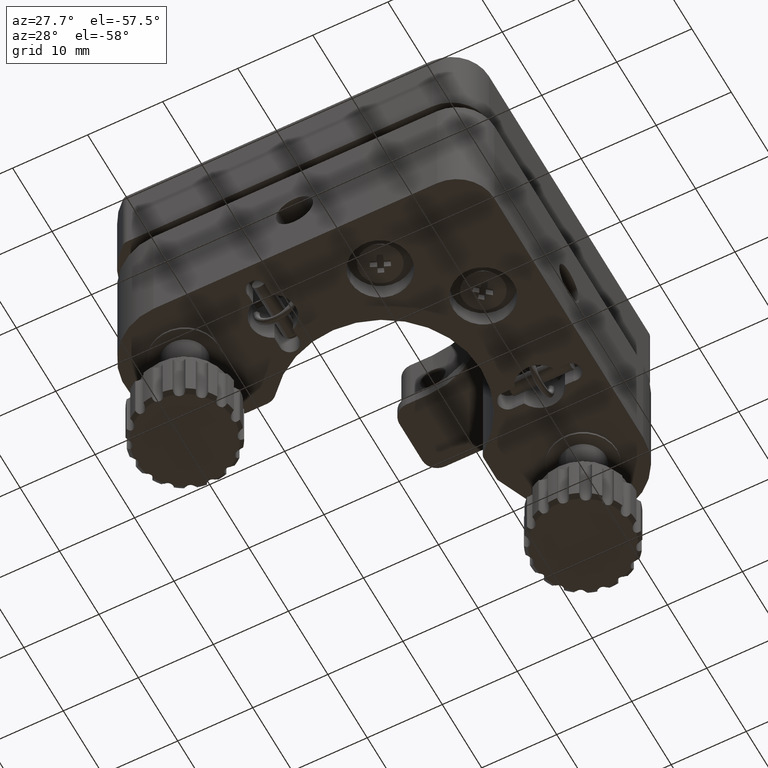
[diagram: clean part render]
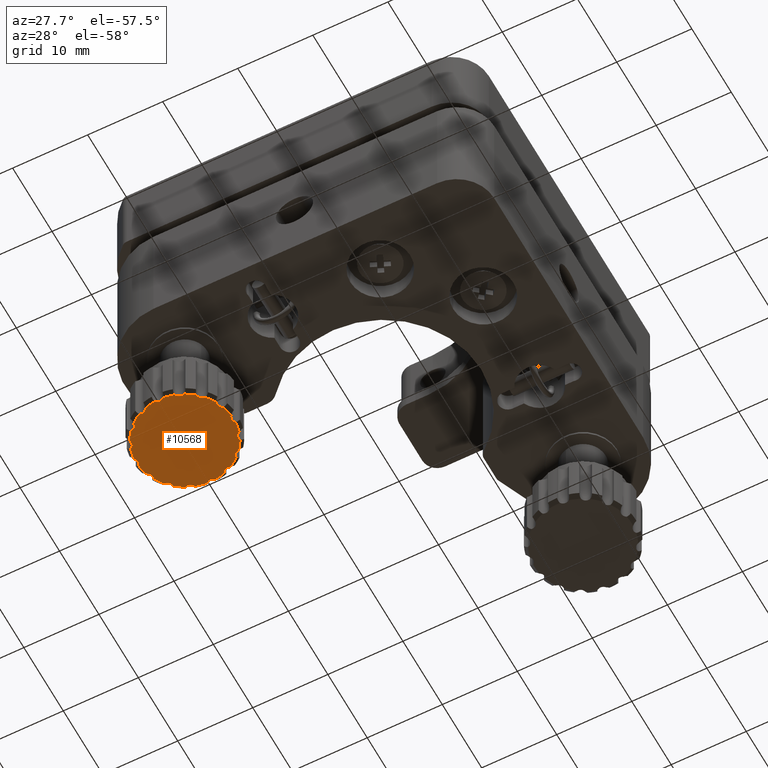
[diagram: same view with one face highlighted and labeled with its STEP entity id]
A machine part, auxiliary view. The second image highlights one B-rep face of the part: STEP entity #10568.
In plain terms, the highlighted planar face has unit normal (-0, -0, -1).
Its self-contained STEP definition (entity closure, byte-faithful):
#31 = CARTESIAN_POINT ( 'NONE',  ( 4.117871494726125000, 19.22522462687263100, 4.263664572557994200 ) ) ;
#115 = CARTESIAN_POINT ( 'NONE',  ( 0.4777067381000861800, 30.39151919001960800, 4.263664572557995100 ) ) ;
#176 = EDGE_CURVE ( 'NONE', #6132, #14667, #16192, .T. ) ;
#181 = ORIENTED_EDGE ( 'NONE', *, *, #30600, .F. ) ;
#513 = CIRCLE ( 'NONE', #6665, 6.499999999999984900 ) ;
#589 = CARTESIAN_POINT ( 'NONE',  ( 6.379775842777196000, 26.55101458151771300, 4.263664572557995100 ) ) ;
#922 = ORIENTED_EDGE ( 'NONE', *, *, #28363, .F. ) ;
#1317 = CARTESIAN_POINT ( 'NONE',  ( 6.375240732264517300, 24.41042908773523800, 4.263664572557994200 ) ) ;
#1814 = DIRECTION ( 'NONE',  ( -6.938893903907226800E-018, -5.551115123125781500E-017, -1.000000000000000000 ) ) ;
#1820 = CARTESIAN_POINT ( 'NONE',  ( 4.808745160786552100, 18.93334523817750500, 4.263664572557994200 ) ) ;
#1852 = DIRECTION ( 'NONE',  ( -6.938893903907226800E-018, -5.551115123125781500E-017, -1.000000000000000000 ) ) ;
#1974 = VERTEX_POINT ( 'NONE', #9824 ) ;
#1986 = CIRCLE ( 'NONE', #27595, 0.7500000000005435700 ) ;
#2233 = AXIS2_PLACEMENT_3D ( 'NONE', #27359, #10380, #30160 ) ;
#2266 = ORIENTED_EDGE ( 'NONE', *, *, #5474, .F. ) ;
#2286 = CIRCLE ( 'NONE', #7449, 0.7500000000002278200 ) ;
#2424 = EDGE_CURVE ( 'NONE', #31898, #10596, #27741, .T. ) ;
#2677 = DIRECTION ( 'NONE',  ( -0.9211648880799018200, 0.3891725182598866400, 0.0000000000000000000 ) ) ;
#2689 = DIRECTION ( 'NONE',  ( -0.9211648880799018200, 0.3891725182598868600, 0.0000000000000000000 ) ) ;
#2791 = DIRECTION ( 'NONE',  ( -0.9211648880799012700, 0.3891725182598881900, 0.0000000000000000000 ) ) ;
#2872 = ORIENTED_EDGE ( 'NONE', *, *, #33656, .T. ) ;
#2893 = AXIS2_PLACEMENT_3D ( 'NONE', #1820, #21694, #4681 ) ;
#2911 = AXIS2_PLACEMENT_3D ( 'NONE', #10360, #10314, #11168 ) ;
#2948 = ORIENTED_EDGE ( 'NONE', *, *, #28742, .T. ) ;
#2975 = DIRECTION ( 'NONE',  ( -6.938893903907226800E-018, -5.551115123125781500E-017, -1.000000000000000000 ) ) ;
#2979 = EDGE_CURVE ( 'NONE', #16485, #11019, #10829, .T. ) ;
#3061 = VERTEX_POINT ( 'NONE', #7166 ) ;
#3067 = CIRCLE ( 'NONE', #8366, 0.7499999999999998900 ) ;
#3070 = ORIENTED_EDGE ( 'NONE', *, *, #5582, .F. ) ;
#3081 = DIRECTION ( 'NONE',  ( -6.938893903907226800E-018, -5.551115123125781500E-017, -1.000000000000000000 ) ) ;
#3087 = EDGE_CURVE ( 'NONE', #15777, #21430, #4605, .T. ) ;
#3145 = AXIS2_PLACEMENT_3D ( 'NONE', #18574, #15708, #32590 ) ;
#3203 = EDGE_CURVE ( 'NONE', #11272, #20170, #26769, .T. ) ;
#3314 = DIRECTION ( 'NONE',  ( -0.9211648880799018200, 0.3891725182598866400, 0.0000000000000000000 ) ) ;
#3318 = CARTESIAN_POINT ( 'NONE',  ( 6.379775842777196000, 26.55101458151771300, 4.263664572557995100 ) ) ;
#3325 = DIRECTION ( 'NONE',  ( -6.938893903907226800E-018, -5.551115123125781500E-017, -1.000000000000000000 ) ) ;
#3456 = DIRECTION ( 'NONE',  ( -0.9211648880799010500, 0.3891725182598885200, 0.0000000000000000000 ) ) ;
#3552 = DIRECTION ( 'NONE',  ( -6.938893903907226800E-018, -5.551115123125781500E-017, -1.000000000000000000 ) ) ;
#3714 = ORIENTED_EDGE ( 'NONE', *, *, #19834, .F. ) ;
#3978 = CARTESIAN_POINT ( 'NONE',  ( -0.05682553523850179100, 30.91761352448775200, 4.263664572557995100 ) ) ;
#4233 = DIRECTION ( 'NONE',  ( -6.938893903907226800E-018, -5.551115123125781500E-017, -1.000000000000000000 ) ) ;
#4593 = CIRCLE ( 'NONE', #18930, 0.7500000000006045200 ) ;
#4605 = CIRCLE ( 'NONE', #27827, 0.7499999999999994400 ) ;
#4681 = DIRECTION ( 'NONE',  ( -0.9211648880799018200, 0.3891725182598866400, 0.0000000000000000000 ) ) ;
#5423 = VERTEX_POINT ( 'NONE', #20114 ) ;
#5474 = EDGE_CURVE ( 'NONE', #10596, #10159, #20568, .T. ) ;
#5578 = CARTESIAN_POINT ( 'NONE',  ( 4.884344564580663600, 28.08261900682276700, 4.263664572557995100 ) ) ;
#5582 = EDGE_CURVE ( 'NONE', #20901, #34518, #1986, .T. ) ;
#5639 = CARTESIAN_POINT ( 'NONE',  ( 6.893763411764794600, 23.86854881420210700, 4.263664572557994200 ) ) ;
#5858 = EDGE_CURVE ( 'NONE', #27918, #34073, #10382, .T. ) ;
#6023 = EDGE_CURVE ( 'NONE', #31898, #12503, #22361, .T. ) ;
#6132 = VERTEX_POINT ( 'NONE', #14474 ) ;
#6181 = DIRECTION ( 'NONE',  ( -0.9211648880799010500, 0.3891725182598885200, 0.0000000000000000000 ) ) ;
#6292 = CARTESIAN_POINT ( 'NONE',  ( -0.1060634168794444800, 23.91778669584323700, 4.263664572557994200 ) ) ;
#6466 = CARTESIAN_POINT ( 'NONE',  ( 4.825261473919597100, 19.68316335705787900, 4.263664572557994200 ) ) ;
#6665 = AXIS2_PLACEMENT_3D ( 'NONE', #15893, #35607, #18764 ) ;
#6667 = EDGE_CURVE ( 'NONE', #21439, #34518, #33884, .T. ) ;
#6833 = DIRECTION ( 'NONE',  ( -0.9211648880799020400, 0.3891725182598866400, 0.0000000000000000000 ) ) ;
#7081 = DIRECTION ( 'NONE',  ( -6.938893903907226800E-018, -5.551115123125781500E-017, -1.000000000000000000 ) ) ;
#7084 = EDGE_LOOP ( 'NONE', ( #8369, #25821, #26486, #17670, #28522, #22612, #16850, #15462, #34353, #2266, #35411, #12346, #181, #34195, #21394, #3070, #24567, #35987, #12826, #14639, #33892, #22499, #20519, #21352, #16336, #3714, #27213, #922, #2872, #27734, #16149, #23830, #21122, #30916, #2948, #32842, #11106 ) ) ;
#7166 = CARTESIAN_POINT ( 'NONE',  ( 6.098284700063382900, 25.85584356905098600, 4.263664572557995100 ) ) ;
#7212 = AXIS2_PLACEMENT_3D ( 'NONE', #29490, #29452, #23554 ) ;
#7428 = EDGE_CURVE ( 'NONE', #16738, #32298, #12756, .T. ) ;
#7449 = AXIS2_PLACEMENT_3D ( 'NONE', #589, #20481, #3456 ) ;
#7534 = EDGE_CURVE ( 'NONE', #7772, #21430, #16742, .T. ) ;
#7644 = DIRECTION ( 'NONE',  ( -6.938893903907226800E-018, -5.551115123125781500E-017, -1.000000000000000000 ) ) ;
#7772 = VERTEX_POINT ( 'NONE', #35537 ) ;
#7957 = CARTESIAN_POINT ( 'NONE',  ( -0.1060634168794444800, 23.91778669584323700, 4.263664572557994200 ) ) ;
#8034 = DIRECTION ( 'NONE',  ( -6.938893903907226800E-018, -5.551115123125781500E-017, -1.000000000000000000 ) ) ;
#8242 = AXIS2_PLACEMENT_3D ( 'NONE', #11152, #30928, #14004 ) ;
#8347 = CARTESIAN_POINT ( 'NONE',  ( -6.591902676536630400, 21.28455881016898800, 4.263664572557993400 ) ) ;
#8366 = AXIS2_PLACEMENT_3D ( 'NONE', #36534, #19679, #2677 ) ;
#8369 = ORIENTED_EDGE ( 'NONE', *, *, #31589, .F. ) ;
#8372 = DIRECTION ( 'NONE',  ( -6.938893903907226800E-018, -5.551115123125781500E-017, -1.000000000000000000 ) ) ;
#8385 = AXIS2_PLACEMENT_3D ( 'NONE', #32906, #32881, #32838 ) ;
#8435 = AXIS2_PLACEMENT_3D ( 'NONE', #24076, #7081, #26892 ) ;
#8821 = EDGE_CURVE ( 'NONE', #34009, #13774, #4593, .T. ) ;
#8856 = DIRECTION ( 'NONE',  ( -6.938893903907226800E-018, -5.551115123125781500E-017, -1.000000000000000000 ) ) ;
#9100 = CARTESIAN_POINT ( 'NONE',  ( 2.829366523833490200, 18.11836852992643200, 4.263664572557993400 ) ) ;
#9112 = EDGE_CURVE ( 'NONE', #26275, #24168, #36218, .T. ) ;
#9126 = VERTEX_POINT ( 'NONE', #20053 ) ;
#9131 = DIRECTION ( 'NONE',  ( -0.9211648880799018200, 0.3891725182598868600, 0.0000000000000000000 ) ) ;
#9423 = CIRCLE ( 'NONE', #11166, 0.7499999999999998900 ) ;
#9700 = AXIS2_PLACEMENT_3D ( 'NONE', #24683, #7644, #27477 ) ;
#9810 = EDGE_CURVE ( 'NONE', #9126, #1974, #28718, .T. ) ;
#9824 = CARTESIAN_POINT ( 'NONE',  ( 5.693354749037407500, 26.85321663655608400, 4.263664572557995100 ) ) ;
#9940 = CARTESIAN_POINT ( 'NONE',  ( 4.878378040786126100, 28.83259527350978900, 4.263664572557995100 ) ) ;
#10015 = AXIS2_PLACEMENT_3D ( 'NONE', #20082, #3081, #22932 ) ;
#10159 = VERTEX_POINT ( 'NONE', #1317 ) ;
#10293 = CIRCLE ( 'NONE', #36446, 0.7500000000001135800 ) ;
#10314 = DIRECTION ( 'NONE',  ( -6.938893903907226800E-018, -5.551115123125781500E-017, -1.000000000000000000 ) ) ;
#10360 = CARTESIAN_POINT ( 'NONE',  ( 6.893763411764794600, 23.86854881420210700, 4.263664572557994200 ) ) ;
#10380 = DIRECTION ( 'NONE',  ( -6.938893903907226800E-018, -5.551115123125781500E-017, -1.000000000000000000 ) ) ;
#10382 = CIRCLE ( 'NONE', #7212, 0.7500000000003436100 ) ;
#10568 = ADVANCED_FACE ( 'NONE', ( #26902 ), #16958, .T. ) ;
#10596 = VERTEX_POINT ( 'NONE', #22763 ) ;
#10782 = CARTESIAN_POINT ( 'NONE',  ( 2.527164468794643100, 17.43194743618644100, 4.263664572557993400 ) ) ;
#10818 = DIRECTION ( 'NONE',  ( -0.9211648880799018200, 0.3891725182598868600, 0.0000000000000000000 ) ) ;
#10829 = CIRCLE ( 'NONE', #3145, 6.499999999999984900 ) ;
#11019 = VERTEX_POINT ( 'NONE', #24742 ) ;
#11106 = ORIENTED_EDGE ( 'NONE', *, *, #29156, .T. ) ;
#11148 = CARTESIAN_POINT ( 'NONE',  ( 6.367669077296849200, 23.33401654086286900, 4.263664572557994200 ) ) ;
#11152 = CARTESIAN_POINT ( 'NONE',  ( -5.090504874545563200, 19.00297811817707900, 4.263664572557993400 ) ) ;
#11166 = AXIS2_PLACEMENT_3D ( 'NONE', #3978, #23853, #6833 ) ;
#11168 = DIRECTION ( 'NONE',  ( -0.9211648880799012700, 0.3891725182598881900, 0.0000000000000000000 ) ) ;
#11201 = DIRECTION ( 'NONE',  ( -0.9211648880799010500, 0.3891725182598886900, 0.0000000000000000000 ) ) ;
#11209 = CIRCLE ( 'NONE', #8242, 0.7500000000005545600 ) ;
#11272 = VERTEX_POINT ( 'NONE', #27077 ) ;
#11381 = CARTESIAN_POINT ( 'NONE',  ( 6.342090799679478000, 21.19357906802386900, 4.263664572557994200 ) ) ;
#11446 = CIRCLE ( 'NONE', #21330, 6.499999999999984900 ) ;
#11525 = AXIS2_PLACEMENT_3D ( 'NONE', #29880, #12968, #32691 ) ;
#12077 = DIRECTION ( 'NONE',  ( -6.938893903907226800E-018, -5.551115123125781500E-017, -1.000000000000000000 ) ) ;
#12335 = CIRCLE ( 'NONE', #12927, 6.499999999999984900 ) ;
#12346 = ORIENTED_EDGE ( 'NONE', *, *, #6023, .T. ) ;
#12503 = VERTEX_POINT ( 'NONE', #29827 ) ;
#12726 = EDGE_CURVE ( 'NONE', #33350, #13774, #25490, .T. ) ;
#12756 = CIRCLE ( 'NONE', #36551, 0.7500000000006155100 ) ;
#12826 = ORIENTED_EDGE ( 'NONE', *, *, #8821, .F. ) ;
#12860 = VERTEX_POINT ( 'NONE', #13989 ) ;
#12927 = AXIS2_PLACEMENT_3D ( 'NONE', #36547, #19694, #2689 ) ;
#12936 = EDGE_CURVE ( 'NONE', #15777, #1974, #18377, .T. ) ;
#12968 = DIRECTION ( 'NONE',  ( -6.938893903907226800E-018, -5.551115123125781500E-017, -1.000000000000000000 ) ) ;
#13162 = AXIS2_PLACEMENT_3D ( 'NONE', #6292, #26127, #9131 ) ;
#13512 = CARTESIAN_POINT ( 'NONE',  ( -3.041493357591731800, 29.71720486176037200, 4.263664572557995100 ) ) ;
#13774 = VERTEX_POINT ( 'NONE', #9100 ) ;
#13989 = CARTESIAN_POINT ( 'NONE',  ( 1.831993456327468200, 17.71343857890014900, 4.263664572557993400 ) ) ;
#14004 = DIRECTION ( 'NONE',  ( -0.9211648880799022700, 0.3891725182598855200, 0.0000000000000000000 ) ) ;
#14139 = DIRECTION ( 'NONE',  ( -0.9211648880799016000, 0.3891725182598874700, 0.0000000000000000000 ) ) ;
#14199 = CARTESIAN_POINT ( 'NONE',  ( 2.618144210939765200, 30.36594091240255000, 4.263664572557995100 ) ) ;
#14237 = DIRECTION ( 'NONE',  ( -0.9211648880799013800, 0.3891725182598878000, 0.0000000000000000000 ) ) ;
#14466 = DIRECTION ( 'NONE',  ( -6.938893903907226800E-018, -5.551115123125781500E-017, -1.000000000000000000 ) ) ;
#14474 = CARTESIAN_POINT ( 'NONE',  ( -5.863613200582228100, 26.93451016480485900, 4.263664572557994200 ) ) ;
#14639 = ORIENTED_EDGE ( 'NONE', *, *, #22388, .F. ) ;
#14667 = VERTEX_POINT ( 'NONE', #36081 ) ;
#14713 = DIRECTION ( 'NONE',  ( -6.938893903907226800E-018, -5.551115123125781500E-017, -1.000000000000000000 ) ) ;
#14812 = AXIS2_PLACEMENT_3D ( 'NONE', #25391, #8372, #28198 ) ;
#14815 = EDGE_CURVE ( 'NONE', #21439, #18162, #19498, .T. ) ;
#14955 = CARTESIAN_POINT ( 'NONE',  ( -0.1060634168794444800, 23.91778669584323700, 4.263664572557994200 ) ) ;
#15138 = VERTEX_POINT ( 'NONE', #20273 ) ;
#15202 = CIRCLE ( 'NONE', #25390, 6.499999999999984900 ) ;
#15226 = CARTESIAN_POINT ( 'NONE',  ( 1.919082078401113100, 30.09425702467545000, 4.263664572557995100 ) ) ;
#15462 = ORIENTED_EDGE ( 'NONE', *, *, #17395, .F. ) ;
#15467 = CARTESIAN_POINT ( 'NONE',  ( -0.5987058087709543600, 30.39909084498723500, 4.263664572557995100 ) ) ;
#15708 = DIRECTION ( 'NONE',  ( -6.938893903907226800E-018, -5.551115123125781500E-017, -1.000000000000000000 ) ) ;
#15750 = AXIS2_PLACEMENT_3D ( 'NONE', #21803, #12077, #18828 ) ;
#15777 = VERTEX_POINT ( 'NONE', #5578 ) ;
#15893 = CARTESIAN_POINT ( 'NONE',  ( -0.1060634168794444800, 23.91778669584323700, 4.263664572557994200 ) ) ;
#15971 = EDGE_CURVE ( 'NONE', #34655, #15138, #18465, .T. ) ;
#16149 = ORIENTED_EDGE ( 'NONE', *, *, #17652, .T. ) ;
#16192 = CIRCLE ( 'NONE', #33330, 6.499999999999984900 ) ;
#16309 = EDGE_CURVE ( 'NONE', #33350, #20901, #29875, .T. ) ;
#16336 = ORIENTED_EDGE ( 'NONE', *, *, #31694, .T. ) ;
#16485 = VERTEX_POINT ( 'NONE', #30887 ) ;
#16738 = VERTEX_POINT ( 'NONE', #33811 ) ;
#16742 = CIRCLE ( 'NONE', #13162, 6.499999999999984900 ) ;
#16850 = ORIENTED_EDGE ( 'NONE', *, *, #9810, .F. ) ;
#16958 = PLANE ( 'NONE',  #34995 ) ;
#17081 = DIRECTION ( 'NONE',  ( -0.9211648880799017100, 0.3891725182598869700, 0.0000000000000000000 ) ) ;
#17395 = EDGE_CURVE ( 'NONE', #3061, #9126, #2286, .T. ) ;
#17632 = AXIS2_PLACEMENT_3D ( 'NONE', #20356, #3325, #23193 ) ;
#17652 = EDGE_CURVE ( 'NONE', #27918, #34133, #34523, .T. ) ;
#17670 = ORIENTED_EDGE ( 'NONE', *, *, #7534, .T. ) ;
#18162 = VERTEX_POINT ( 'NONE', #23775 ) ;
#18257 = EDGE_CURVE ( 'NONE', #6132, #34133, #33998, .T. ) ;
#18377 = CIRCLE ( 'NONE', #10015, 6.499999999999984900 ) ;
#18465 = CIRCLE ( 'NONE', #17632, 0.7500000000006337200 ) ;
#18473 = AXIS2_PLACEMENT_3D ( 'NONE', #25858, #8856, #28662 ) ;
#18574 = CARTESIAN_POINT ( 'NONE',  ( -0.1060634168794444800, 23.91778669584323700, 4.263664572557994200 ) ) ;
#18592 = CARTESIAN_POINT ( 'NONE',  ( -2.131208912159770400, 17.74131636701094900, 4.263664572557993400 ) ) ;
#18764 = DIRECTION ( 'NONE',  ( -0.9211648880799018200, 0.3891725182598868600, 0.0000000000000000000 ) ) ;
#18779 = DIRECTION ( 'NONE',  ( -6.938893903907226800E-018, -5.551115123125781500E-017, -1.000000000000000000 ) ) ;
#18828 = DIRECTION ( 'NONE',  ( -0.9211648880799016000, 0.3891725182598874100, 0.0000000000000000000 ) ) ;
#18846 = CARTESIAN_POINT ( 'NONE',  ( 2.527164468794643100, 17.43194743618644100, 4.263664572557993400 ) ) ;
#18889 = CARTESIAN_POINT ( 'NONE',  ( -0.1060634168794444800, 23.91778669584323700, 4.263664572557994200 ) ) ;
#18930 = AXIS2_PLACEMENT_3D ( 'NONE', #18846, #1814, #21690 ) ;
#19021 = CARTESIAN_POINT ( 'NONE',  ( 4.128559921906275000, 28.84911158664196800, 4.263664572557995100 ) ) ;
#19106 = EDGE_CURVE ( 'NONE', #12860, #15138, #11446, .T. ) ;
#19498 = CIRCLE ( 'NONE', #34537, 0.7500000000004432000 ) ;
#19679 = DIRECTION ( 'NONE',  ( -6.938893903907226800E-018, -5.551115123125781500E-017, -1.000000000000000000 ) ) ;
#19694 = DIRECTION ( 'NONE',  ( -6.938893903907226800E-018, -5.551115123125781500E-017, -1.000000000000000000 ) ) ;
#19834 = EDGE_CURVE ( 'NONE', #16485, #33569, #11209, .T. ) ;
#19886 = CIRCLE ( 'NONE', #14812, 6.499999999999984900 ) ;
#19892 = EDGE_CURVE ( 'NONE', #3061, #10159, #15202, .T. ) ;
#19978 = CARTESIAN_POINT ( 'NONE',  ( -0.1060634168794444800, 23.91778669584323700, 4.263664572557994200 ) ) ;
#20053 = CARTESIAN_POINT ( 'NONE',  ( 5.688902176717059300, 26.84289397021271400, 4.263664572557995100 ) ) ;
#20082 = CARTESIAN_POINT ( 'NONE',  ( -0.1060634168794444800, 23.91778669584323700, 4.263664572557994200 ) ) ;
#20114 = CARTESIAN_POINT ( 'NONE',  ( -4.270895727858849100, 28.90819467730344900, 4.263664572557994200 ) ) ;
#20170 = VERTEX_POINT ( 'NONE', #13512 ) ;
#20273 = CARTESIAN_POINT ( 'NONE',  ( 0.3865789750124496400, 17.43648254669926700, 4.263664572557993400 ) ) ;
#20356 = CARTESIAN_POINT ( 'NONE',  ( -0.1553012985209652800, 16.91795986719884200, 4.263664572557993400 ) ) ;
#20379 = VERTEX_POINT ( 'NONE', #23040 ) ;
#20390 = EDGE_CURVE ( 'NONE', #5423, #14667, #10293, .T. ) ;
#20481 = DIRECTION ( 'NONE',  ( -6.938893903907226800E-018, -5.551115123125781500E-017, -1.000000000000000000 ) ) ;
#20519 = ORIENTED_EDGE ( 'NONE', *, *, #33657, .T. ) ;
#20568 = CIRCLE ( 'NONE', #2911, 0.7500000000003266300 ) ;
#20901 = VERTEX_POINT ( 'NONE', #31 ) ;
#21122 = ORIENTED_EDGE ( 'NONE', *, *, #176, .T. ) ;
#21330 = AXIS2_PLACEMENT_3D ( 'NONE', #18889, #1852, #21733 ) ;
#21352 = ORIENTED_EDGE ( 'NONE', *, *, #7428, .F. ) ;
#21394 = ORIENTED_EDGE ( 'NONE', *, *, #6667, .T. ) ;
#21430 = VERTEX_POINT ( 'NONE', #19021 ) ;
#21439 = VERTEX_POINT ( 'NONE', #27638 ) ;
#21602 = CARTESIAN_POINT ( 'NONE',  ( -0.6898335718604292600, 17.44405420166700400, 4.263664572557993400 ) ) ;
#21690 = DIRECTION ( 'NONE',  ( -0.9211648880799016000, 0.3891725182598874700, 0.0000000000000000000 ) ) ;
#21694 = DIRECTION ( 'NONE',  ( -6.938893903907226800E-018, -5.551115123125781500E-017, -1.000000000000000000 ) ) ;
#21733 = DIRECTION ( 'NONE',  ( -0.9211648880799018200, 0.3891725182598868600, 0.0000000000000000000 ) ) ;
#21803 = CARTESIAN_POINT ( 'NONE',  ( -2.739291302554079700, 30.40362595550026700, 4.263664572557995100 ) ) ;
#22051 = CARTESIAN_POINT ( 'NONE',  ( -4.340686755665165800, 18.98646180504451000, 4.263664572557993400 ) ) ;
#22361 = CIRCLE ( 'NONE', #8385, 6.499999999999984900 ) ;
#22388 = EDGE_CURVE ( 'NONE', #12860, #34009, #30820, .T. ) ;
#22440 = CIRCLE ( 'NONE', #23904, 6.499999999999984900 ) ;
#22499 = ORIENTED_EDGE ( 'NONE', *, *, #15971, .F. ) ;
#22511 = CIRCLE ( 'NONE', #29737, 0.7500000000004595200 ) ;
#22612 = ORIENTED_EDGE ( 'NONE', *, *, #12936, .T. ) ;
#22642 = DIRECTION ( 'NONE',  ( -6.938893903907226800E-018, -5.551115123125781500E-017, -1.000000000000000000 ) ) ;
#22740 = CARTESIAN_POINT ( 'NONE',  ( 4.058768894098988300, 18.92737871438221800, 4.263664572557994200 ) ) ;
#22763 = CARTESIAN_POINT ( 'NONE',  ( 6.202889745704569100, 24.16042820289715100, 4.263664572557994200 ) ) ;
#22792 = DIRECTION ( 'NONE',  ( -0.9211648880799018200, 0.3891725182598868600, 0.0000000000000000000 ) ) ;
#22823 = DIRECTION ( 'NONE',  ( -0.9211648880799018200, 0.3891725182598868600, 0.0000000000000000000 ) ) ;
#22932 = DIRECTION ( 'NONE',  ( -0.9211648880799018200, 0.3891725182598868600, 0.0000000000000000000 ) ) ;
#23040 = CARTESIAN_POINT ( 'NONE',  ( -6.310411533822365200, 21.97972982263578200, 4.263664572557993400 ) ) ;
#23185 = DIRECTION ( 'NONE',  ( -6.938893903907226800E-018, -5.551115123125781500E-017, -1.000000000000000000 ) ) ;
#23193 = DIRECTION ( 'NONE',  ( -0.9211648880799021600, 0.3891725182598861400, 0.0000000000000000000 ) ) ;
#23554 = DIRECTION ( 'NONE',  ( -0.9211648880799011600, 0.3891725182598886300, 0.0000000000000000000 ) ) ;
#23775 = CARTESIAN_POINT ( 'NONE',  ( 5.651217133619144100, 21.48545845671895500, 4.263664572557994200 ) ) ;
#23830 = ORIENTED_EDGE ( 'NONE', *, *, #18257, .F. ) ;
#23853 = DIRECTION ( 'NONE',  ( -6.938893903907226800E-018, -5.551115123125781500E-017, -1.000000000000000000 ) ) ;
#23904 = AXIS2_PLACEMENT_3D ( 'NONE', #7957, #27780, #10818 ) ;
#24076 = CARTESIAN_POINT ( 'NONE',  ( -0.1060634168794444800, 23.91778669584323700, 4.263664572557994200 ) ) ;
#24168 = VERTEX_POINT ( 'NONE', #15226 ) ;
#24393 = CARTESIAN_POINT ( 'NONE',  ( -6.282533745711575100, 25.94293219112404000, 4.263664572557994200 ) ) ;
#24567 = ORIENTED_EDGE ( 'NONE', *, *, #16309, .F. ) ;
#24683 = CARTESIAN_POINT ( 'NONE',  ( 6.342090799679478000, 21.19357906802386900, 4.263664572557994200 ) ) ;
#24742 = CARTESIAN_POINT ( 'NONE',  ( -5.905481582796507000, 20.98235675513080500, 4.263664572557993400 ) ) ;
#25060 = CARTESIAN_POINT ( 'NONE',  ( -0.1060634168794444800, 23.91778669584323700, 4.263664572557994200 ) ) ;
#25390 = AXIS2_PLACEMENT_3D ( 'NONE', #19978, #2975, #22823 ) ;
#25391 = CARTESIAN_POINT ( 'NONE',  ( -0.1060634168794444800, 23.91778669584323700, 4.263664572557994200 ) ) ;
#25489 = AXIS2_PLACEMENT_3D ( 'NONE', #35429, #35332, #35297 ) ;
#25490 = CIRCLE ( 'NONE', #25938, 6.499999999999984900 ) ;
#25638 = EDGE_CURVE ( 'NONE', #7772, #24168, #3067, .T. ) ;
#25821 = ORIENTED_EDGE ( 'NONE', *, *, #9112, .T. ) ;
#25858 = CARTESIAN_POINT ( 'NONE',  ( -0.1060634168794444800, 23.91778669584323700, 4.263664572557994200 ) ) ;
#25938 = AXIS2_PLACEMENT_3D ( 'NONE', #25060, #8034, #27864 ) ;
#26127 = DIRECTION ( 'NONE',  ( -6.938893903907226800E-018, -5.551115123125781500E-017, -1.000000000000000000 ) ) ;
#26275 = VERTEX_POINT ( 'NONE', #115 ) ;
#26486 = ORIENTED_EDGE ( 'NONE', *, *, #25638, .F. ) ;
#26769 = CIRCLE ( 'NONE', #15750, 0.7500000000000339700 ) ;
#26876 = AXIS2_PLACEMENT_3D ( 'NONE', #10782, #30550, #14139 ) ;
#26892 = DIRECTION ( 'NONE',  ( -0.9211648880799018200, 0.3891725182598868600, 0.0000000000000000000 ) ) ;
#26902 = FACE_OUTER_BOUND ( 'NONE', #7084, .T. ) ;
#26928 = DIRECTION ( 'NONE',  ( -0.9211648880799018200, 0.3891725182598868600, 0.0000000000000000000 ) ) ;
#27077 = CARTESIAN_POINT ( 'NONE',  ( -2.044120290087795100, 30.12213481278587700, 4.263664572557995100 ) ) ;
#27213 = ORIENTED_EDGE ( 'NONE', *, *, #2979, .T. ) ;
#27359 = CARTESIAN_POINT ( 'NONE',  ( -0.1060634168794444800, 23.91778669584323700, 4.263664572557994200 ) ) ;
#27477 = DIRECTION ( 'NONE',  ( -0.9211648880799013800, 0.3891725182598878000, 0.0000000000000000000 ) ) ;
#27595 = AXIS2_PLACEMENT_3D ( 'NONE', #35133, #3552, #3314 ) ;
#27638 = CARTESIAN_POINT ( 'NONE',  ( 5.651486366822957100, 20.90106322688088600, 4.263664572557994200 ) ) ;
#27734 = ORIENTED_EDGE ( 'NONE', *, *, #5858, .F. ) ;
#27741 = CIRCLE ( 'NONE', #32482, 0.7500000000003266300 ) ;
#27780 = DIRECTION ( 'NONE',  ( -6.938893903907226800E-018, -5.551115123125781500E-017, -1.000000000000000000 ) ) ;
#27827 = AXIS2_PLACEMENT_3D ( 'NONE', #9940, #4233, #26928 ) ;
#27864 = DIRECTION ( 'NONE',  ( -0.9211648880799018200, 0.3891725182598868600, 0.0000000000000000000 ) ) ;
#27918 = VERTEX_POINT ( 'NONE', #31630 ) ;
#28173 = DIRECTION ( 'NONE',  ( -6.938893903907226800E-018, -5.551115123125781500E-017, -1.000000000000000000 ) ) ;
#28198 = DIRECTION ( 'NONE',  ( -0.9211648880799018200, 0.3891725182598868600, 0.0000000000000000000 ) ) ;
#28363 = EDGE_CURVE ( 'NONE', #20379, #11019, #22511, .T. ) ;
#28522 = ORIENTED_EDGE ( 'NONE', *, *, #3087, .F. ) ;
#28662 = DIRECTION ( 'NONE',  ( -0.9211648880799018200, 0.3891725182598868600, 0.0000000000000000000 ) ) ;
#28718 = CIRCLE ( 'NONE', #35228, 0.7500000000002278200 ) ;
#28742 = EDGE_CURVE ( 'NONE', #5423, #20170, #22440, .T. ) ;
#29156 = EDGE_CURVE ( 'NONE', #11272, #32254, #30699, .T. ) ;
#29452 = DIRECTION ( 'NONE',  ( -6.938893903907226800E-018, -5.551115123125781500E-017, -1.000000000000000000 ) ) ;
#29490 = CARTESIAN_POINT ( 'NONE',  ( -7.105890245524229900, 23.96702457748459700, 4.263664572557994200 ) ) ;
#29737 = AXIS2_PLACEMENT_3D ( 'NONE', #8347, #28173, #11201 ) ;
#29827 = CARTESIAN_POINT ( 'NONE',  ( 6.070406911952943600, 21.89264120056321500, 4.263664572557994200 ) ) ;
#29875 = CIRCLE ( 'NONE', #2893, 0.7500000000005435700 ) ;
#29880 = CARTESIAN_POINT ( 'NONE',  ( -6.554217633438914200, 26.64199432366283600, 4.263664572557994200 ) ) ;
#29935 = CIRCLE ( 'NONE', #9700, 0.7500000000004432000 ) ;
#30160 = DIRECTION ( 'NONE',  ( -0.9211648880799018200, 0.3891725182598868600, 0.0000000000000000000 ) ) ;
#30550 = DIRECTION ( 'NONE',  ( -6.938893903907226800E-018, -5.551115123125781500E-017, -1.000000000000000000 ) ) ;
#30600 = EDGE_CURVE ( 'NONE', #18162, #12503, #29935, .T. ) ;
#30699 = CIRCLE ( 'NONE', #8435, 6.499999999999984900 ) ;
#30820 = CIRCLE ( 'NONE', #26876, 0.7500000000006045200 ) ;
#30887 = CARTESIAN_POINT ( 'NONE',  ( -5.096471398340344000, 19.75295438486465800, 4.263664572557993400 ) ) ;
#30916 = ORIENTED_EDGE ( 'NONE', *, *, #20390, .F. ) ;
#30928 = DIRECTION ( 'NONE',  ( -6.938893903907226800E-018, -5.551115123125781500E-017, -1.000000000000000000 ) ) ;
#31160 = DIRECTION ( 'NONE',  ( -6.938893903907226800E-018, -5.551115123125781500E-017, -1.000000000000000000 ) ) ;
#31393 = CARTESIAN_POINT ( 'NONE',  ( -2.830271044699202300, 17.46963247928415800, 4.263664572557993400 ) ) ;
#31589 = EDGE_CURVE ( 'NONE', #26275, #32254, #9423, .T. ) ;
#31621 = CARTESIAN_POINT ( 'NONE',  ( -5.020871994545991000, 28.90222815350919600, 4.263664572557994200 ) ) ;
#31630 = CARTESIAN_POINT ( 'NONE',  ( -6.579795911055761300, 24.50155685082334900, 4.263664572557994200 ) ) ;
#31694 = EDGE_CURVE ( 'NONE', #16738, #33569, #513, .T. ) ;
#31898 = VERTEX_POINT ( 'NONE', #11148 ) ;
#32254 = VERTEX_POINT ( 'NONE', #15467 ) ;
#32298 = VERTEX_POINT ( 'NONE', #18592 ) ;
#32482 = AXIS2_PLACEMENT_3D ( 'NONE', #5639, #22642, #2791 ) ;
#32564 = CARTESIAN_POINT ( 'NONE',  ( -6.587367566023457900, 23.42514430395191700, 4.263664572557994200 ) ) ;
#32590 = DIRECTION ( 'NONE',  ( -0.9211648880799018200, 0.3891725182598868600, 0.0000000000000000000 ) ) ;
#32691 = DIRECTION ( 'NONE',  ( -0.9211648880799016000, 0.3891725182598875200, 0.0000000000000000000 ) ) ;
#32838 = DIRECTION ( 'NONE',  ( -0.9211648880799018200, 0.3891725182598868600, 0.0000000000000000000 ) ) ;
#32842 = ORIENTED_EDGE ( 'NONE', *, *, #3203, .F. ) ;
#32881 = DIRECTION ( 'NONE',  ( -6.938893903907226800E-018, -5.551115123125781500E-017, -1.000000000000000000 ) ) ;
#32906 = CARTESIAN_POINT ( 'NONE',  ( -0.1060634168794444800, 23.91778669584323700, 4.263664572557994200 ) ) ;
#33330 = AXIS2_PLACEMENT_3D ( 'NONE', #14955, #18779, #22792 ) ;
#33350 = VERTEX_POINT ( 'NONE', #22740 ) ;
#33569 = VERTEX_POINT ( 'NONE', #22051 ) ;
#33656 = EDGE_CURVE ( 'NONE', #20379, #34073, #12335, .T. ) ;
#33657 = EDGE_CURVE ( 'NONE', #34655, #32298, #19886, .T. ) ;
#33811 = CARTESIAN_POINT ( 'NONE',  ( -3.122786885842002000, 18.16023691214094200, 4.263664572557993400 ) ) ;
#33884 = CIRCLE ( 'NONE', #25489, 6.499999999999984900 ) ;
#33892 = ORIENTED_EDGE ( 'NONE', *, *, #19106, .T. ) ;
#33930 = DIRECTION ( 'NONE',  ( -2.095123881871912700E-017, -4.959123436535305900E-017, -1.000000000000000000 ) ) ;
#33998 = CIRCLE ( 'NONE', #11525, 0.7500000000002209300 ) ;
#34009 = VERTEX_POINT ( 'NONE', #35020 ) ;
#34073 = VERTEX_POINT ( 'NONE', #32564 ) ;
#34133 = VERTEX_POINT ( 'NONE', #24393 ) ;
#34195 = ORIENTED_EDGE ( 'NONE', *, *, #14815, .F. ) ;
#34198 = DIRECTION ( 'NONE',  ( -0.9211648880799020400, 0.3891725182598863000, 0.0000000000000000000 ) ) ;
#34353 = ORIENTED_EDGE ( 'NONE', *, *, #19892, .T. ) ;
#34442 = DIRECTION ( 'NONE',  ( -0.9211648880799014900, 0.3891725182598877500, 0.0000000000000000000 ) ) ;
#34518 = VERTEX_POINT ( 'NONE', #6466 ) ;
#34523 = CIRCLE ( 'NONE', #2233, 6.499999999999984900 ) ;
#34537 = AXIS2_PLACEMENT_3D ( 'NONE', #11381, #31160, #14237 ) ;
#34655 = VERTEX_POINT ( 'NONE', #21602 ) ;
#34995 = AXIS2_PLACEMENT_3D ( 'NONE', #14199, #33930, #17081 ) ;
#35020 = CARTESIAN_POINT ( 'NONE',  ( 1.836290802734160000, 17.72382682488159100, 4.263664572557993400 ) ) ;
#35133 = CARTESIAN_POINT ( 'NONE',  ( 4.808745160786552100, 18.93334523817750500, 4.263664572557994200 ) ) ;
#35228 = AXIS2_PLACEMENT_3D ( 'NONE', #3318, #23185, #6181 ) ;
#35297 = DIRECTION ( 'NONE',  ( -0.9211648880799018200, 0.3891725182598868600, 0.0000000000000000000 ) ) ;
#35332 = DIRECTION ( 'NONE',  ( -6.938893903907226800E-018, -5.551115123125781500E-017, -1.000000000000000000 ) ) ;
#35411 = ORIENTED_EDGE ( 'NONE', *, *, #2424, .F. ) ;
#35429 = CARTESIAN_POINT ( 'NONE',  ( -0.1060634168794444800, 23.91778669584323700, 4.263664572557994200 ) ) ;
#35537 = CARTESIAN_POINT ( 'NONE',  ( 2.910660052081917900, 29.67533647954615700, 4.263664572557995100 ) ) ;
#35607 = DIRECTION ( 'NONE',  ( -6.938893903907226800E-018, -5.551115123125781500E-017, -1.000000000000000000 ) ) ;
#35987 = ORIENTED_EDGE ( 'NONE', *, *, #12726, .T. ) ;
#36081 = CARTESIAN_POINT ( 'NONE',  ( -5.037388307677941800, 28.15241003462922700, 4.263664572557994200 ) ) ;
#36218 = CIRCLE ( 'NONE', #18473, 6.499999999999984900 ) ;
#36446 = AXIS2_PLACEMENT_3D ( 'NONE', #31621, #14713, #34442 ) ;
#36534 = CARTESIAN_POINT ( 'NONE',  ( 2.618144210939764800, 30.36594091240255000, 4.263664572557995100 ) ) ;
#36547 = CARTESIAN_POINT ( 'NONE',  ( -0.1060634168794444800, 23.91778669584323700, 4.263664572557994200 ) ) ;
#36551 = AXIS2_PLACEMENT_3D ( 'NONE', #31393, #14466, #34198 ) ;